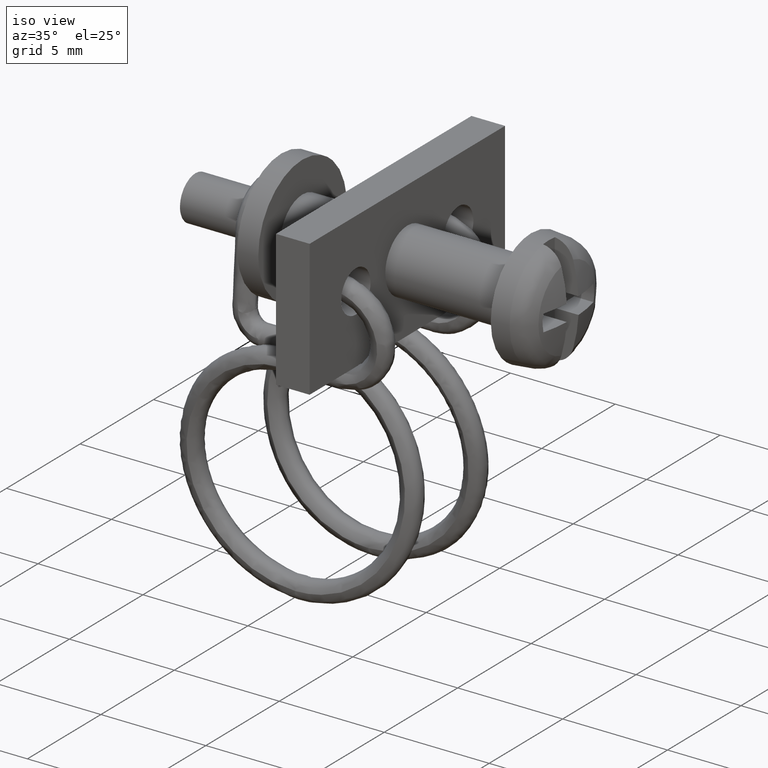
[diagram: clean part render]
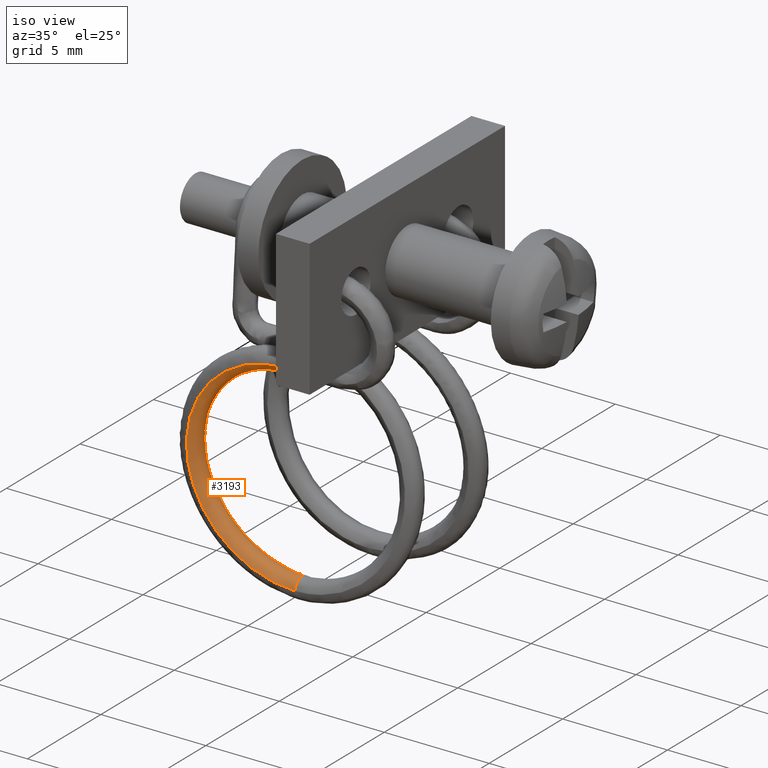
[diagram: same view with one face highlighted and labeled with its STEP entity id]
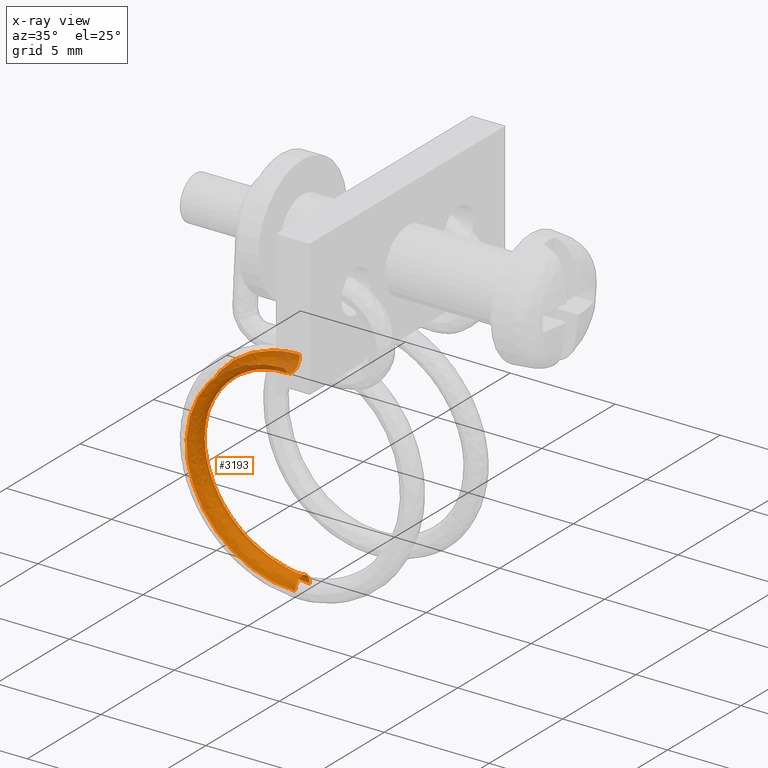
[diagram: x-ray of the same camera — body ghosted, the highlighted face saturated]
A machine part, iso view. The second image highlights one B-rep face of the part: STEP entity #3193.
The next image is the same camera in x-ray: the body ghosted, the highlighted face saturated — about 7% of this face is hidden behind the body in this view.
In plain terms, the highlighted face is a freeform B-spline surface patch.
Its self-contained STEP definition (entity closure, byte-faithful):
#2970=CARTESIAN_POINT('',(-9.150000000000301,-3.677413767197815,-4.101714622658045));
#2971=VERTEX_POINT('',#2970);
#2979=CARTESIAN_POINT('',(-9.150000000000301,-3.048092363696006,-4.479944228981552));
#2980=VERTEX_POINT('',#2979);
#2981=CARTESIAN_POINT('',(-9.150000000000301,-3.048092363696006,-4.479944228981552));
#2982=CARTESIAN_POINT('',(-9.150000000000301,-3.060574593802572,-4.483733990723244));
#2983=CARTESIAN_POINT('',(-9.150000000000301,-3.073258103844955,-4.486980507416745));
#2984=CARTESIAN_POINT('',(-9.150000000000301,-3.342455761924044,-4.542880272055068));
#2985=CARTESIAN_POINT('',(-9.150000000000301,-3.624147952179829,-4.358066569957548));
#2986=CARTESIAN_POINT('',(-9.150000000000301,-3.677413767197815,-4.101714622658045));
#2987=B_SPLINE_CURVE_WITH_KNOTS('',3,(#2981,#2982,#2983,#2984,#2985,#2986),.UNSPECIFIED.,.F.,.U.,(4,2,4),(0.737454105428892,0.750000000000000,1.0),.UNSPECIFIED.);
#2988=EDGE_CURVE('',#2980,#2971,#2987,.T.);
#3043=CARTESIAN_POINT('',(-9.150000000000301,-2.698324117503147,-3.898285377315160));
#3044=VERTEX_POINT('',#3043);
#3045=CARTESIAN_POINT('',(-9.150000000000301,-2.698324117503147,-3.898285377315160));
#3046=CARTESIAN_POINT('',(-9.150000000000301,-2.647730051534265,-4.141777013077766));
#3047=CARTESIAN_POINT('',(-9.150000000000301,-2.811859939641581,-4.408160994264810));
#3048=CARTESIAN_POINT('',(-9.150000000000301,-3.048092363696006,-4.479944228981552));
#3049=B_SPLINE_CURVE_WITH_KNOTS('',3,(#3045,#3046,#3047,#3048),.UNSPECIFIED.,.F.,.U.,(4,4),(0.500000000000000,0.737454105428892),.UNSPECIFIED.);
#3050=EDGE_CURVE('',#3044,#2980,#3049,.T.);
#3065=CARTESIAN_POINT('',(-8.989883455225995,-2.002198197491077,-14.049397424621869));
#3066=CARTESIAN_POINT('',(-8.998224117089373,-1.974638159336026,-13.782765626924380));
#3067=CARTESIAN_POINT('',(-9.007017536094148,-2.199847416419480,-13.519150346645169));
#3068=CARTESIAN_POINT('',(-9.009307259419236,-2.732702114506380,-13.483127008986150));
#3069=CARTESIAN_POINT('',(-9.002592987402439,-2.991343122416942,-13.714031868158960));
#3070=CARTESIAN_POINT('',(-8.994170756764294,-2.999920821415919,-13.981946956065091));
#3071=CARTESIAN_POINT('',(-9.043255636817330,-2.002198197491077,-14.049397424621869));
#3072=CARTESIAN_POINT('',(-9.048816078059584,-1.974638159336026,-13.782765626924380));
#3073=CARTESIAN_POINT('',(-9.054678357396096,-2.199847416419480,-13.519150346645169));
#3074=CARTESIAN_POINT('',(-9.056204839612821,-2.732702114506380,-13.483127008986150));
#3075=CARTESIAN_POINT('',(-9.051728658268290,-2.991343122416942,-13.714031868158960));
#3076=CARTESIAN_POINT('',(-9.046113837842864,-2.999920821415919,-13.981946956065091));
#3077=CARTESIAN_POINT('',(-9.096627818408665,-2.002198197491077,-14.049397424621869));
#3078=CARTESIAN_POINT('',(-9.099408039029790,-1.974638159336026,-13.782765626924380));
#3079=CARTESIAN_POINT('',(-9.102339178698049,-2.199847416419480,-13.519150346645169));
#3080=CARTESIAN_POINT('',(-9.103102419806412,-2.732702114506380,-13.483127008986150));
#3081=CARTESIAN_POINT('',(-9.100864329134147,-2.991343122416942,-13.714031868158960));
#3082=CARTESIAN_POINT('',(-9.098056918921431,-2.999920821415919,-13.981946956065091));
#3083=CARTESIAN_POINT('',(-10.484304539784009,-2.002198197491077,-14.049397424621869));
#3084=CARTESIAN_POINT('',(-10.414799024255821,-1.974638159336026,-13.782765626924380));
#3085=CARTESIAN_POINT('',(-10.341520532549341,-2.199847416419480,-13.519150346645169));
#3086=CARTESIAN_POINT('',(-10.322439504840270,-2.732702114506380,-13.483127008986150));
#3087=CARTESIAN_POINT('',(-10.378391771646930,-2.991343122416942,-13.714031868158960));
#3088=CARTESIAN_POINT('',(-10.448577026964820,-2.999920821415919,-13.981946956065091));
#3089=CARTESIAN_POINT('',(-11.803403806401530,-2.039883463252812,-13.501542108303560));
#3090=CARTESIAN_POINT('',(-11.665271787809910,-2.010359014498961,-13.263468230261781));
#3091=CARTESIAN_POINT('',(-11.519641532397101,-2.233497226649036,-13.029961082593410));
#3092=CARTESIAN_POINT('',(-11.481720788201651,-2.765812644179916,-13.001777618535090));
#3093=CARTESIAN_POINT('',(-11.592917712652230,-3.026035011859019,-13.209693218108420));
#3094=CARTESIAN_POINT('',(-11.732400614386741,-3.036596332710002,-13.448771099828040));
#3095=CARTESIAN_POINT('',(-13.685273770793479,-2.169312191795584,-11.619952163243010));
#3096=CARTESIAN_POINT('',(-13.449482355864481,-2.133071056057439,-11.479523149952870));
#3097=CARTESIAN_POINT('',(-13.200891447471770,-2.349127978503601,-11.348961334860260));
#3098=CARTESIAN_POINT('',(-13.136160720884231,-2.879599495021552,-11.347583863908129));
#3099=CARTESIAN_POINT('',(-13.325973918567280,-3.145228827304079,-11.476894888240730));
#3100=CARTESIAN_POINT('',(-13.564071291600129,-3.162572522003809,-11.617372972361659));
#3101=CARTESIAN_POINT('',(-14.233157368064960,-2.260260119769721,-10.297782744371020));
#3102=CARTESIAN_POINT('',(-13.969060188128640,-2.219312469724069,-10.225775402968740));
#3103=CARTESIAN_POINT('',(-13.690626989515980,-2.430407393586147,-10.167349401530929));
#3104=CARTESIAN_POINT('',(-13.618125612175790,-2.959586852499671,-10.184755415706791));
#3105=CARTESIAN_POINT('',(-13.830725083781550,-3.229004950928653,-10.258986672458040));
#3106=CARTESIAN_POINT('',(-14.097405042367580,-3.251101188010532,-10.330373944515550));
#3107=CARTESIAN_POINT('',(-14.233727374218731,-2.443307865086526,-7.636698138704198));
#3108=CARTESIAN_POINT('',(-13.969600716614799,-2.392893964917623,-7.702307856903835));
#3109=CARTESIAN_POINT('',(-13.691136440190069,-2.594008781072836,-7.788969198306273));
#3110=CARTESIAN_POINT('',(-13.618626970481630,-3.120589514121414,-7.844154587367258));
#3111=CARTESIAN_POINT('',(-13.831250171749980,-3.397627988410319,-7.807603464077143));
#3112=CARTESIAN_POINT('',(-14.097959896285090,-3.429283052252238,-7.740027829509892));
#3113=CARTESIAN_POINT('',(-13.686382795813939,-2.534287684914444,-6.314065087139075));
#3114=CARTESIAN_POINT('',(-13.450533937506130,-2.479165634884827,-6.448120254324744));
#3115=CARTESIAN_POINT('',(-13.201882467527501,-2.675316728120493,-6.606942477174985));
#3116=CARTESIAN_POINT('',(-13.137135971273960,-3.200604954563755,-6.680917878780745));
#3117=CARTESIAN_POINT('',(-13.326995411148250,-3.481433511627050,-6.589267847233650));
#3118=CARTESIAN_POINT('',(-13.565150789336220,-3.517842769399148,-6.452577390973056));
#3119=CARTESIAN_POINT('',(-11.804604393922030,-2.663793309941977,-4.431357247643375));
#3120=CARTESIAN_POINT('',(-11.666409961801801,-2.601950597434906,-4.663115073934582));
#3121=CARTESIAN_POINT('',(-11.520713904860679,-2.791016209669957,-4.924943560972756));
#3122=CARTESIAN_POINT('',(-11.482776026568740,-3.314459443726615,-5.025740821701358));
#3123=CARTESIAN_POINT('',(-11.594023194202141,-3.600698165684193,-4.855439690186509));
#3124=CARTESIAN_POINT('',(-11.733569119847900,-3.643893811677787,-4.620091076764626));
#3125=CARTESIAN_POINT('',(-10.485037493801560,-2.701519576616844,-3.882905873060651));
#3126=CARTESIAN_POINT('',(-10.415493767980200,-2.637710318254220,-4.143252660622388));
#3127=CARTESIAN_POINT('',(-10.342174991805670,-2.824702634391438,-4.435222006921627));
#3128=CARTESIAN_POINT('',(-10.323083474400880,-3.347606001709875,-4.543867662961900));
#3129=CARTESIAN_POINT('',(-10.379066500674099,-3.635427802327638,-4.350552283201884));
#3130=CARTESIAN_POINT('',(-10.449290339968570,-3.680609226311729,-4.086335118402490));
#3131=CARTESIAN_POINT('',(-9.096598500248250,-2.701519576616844,-3.882905873060651));
#3132=CARTESIAN_POINT('',(-9.099380249281106,-2.637710318254220,-4.143252660622388));
#3133=CARTESIAN_POINT('',(-9.102313000328087,-2.824702634391438,-4.435222006921627));
#3134=CARTESIAN_POINT('',(-9.103076661024279,-3.347606001709875,-4.543867662961900));
#3135=CARTESIAN_POINT('',(-9.100837339973349,-3.635427802327638,-4.350552283201884));
#3136=CARTESIAN_POINT('',(-9.098028386401570,-3.680609226311729,-4.086335118402490));
#3137=CARTESIAN_POINT('',(-9.043197000496200,-2.701519576616844,-3.882905873060651));
#3138=CARTESIAN_POINT('',(-9.048760498561910,-2.637710318254220,-4.143252660622388));
#3139=CARTESIAN_POINT('',(-9.054626000655873,-2.824702634391438,-4.435222006921627));
#3140=CARTESIAN_POINT('',(-9.056153322048255,-3.347606001709875,-4.543867662961900));
#3141=CARTESIAN_POINT('',(-9.051674679946398,-3.635427802327638,-4.350552283201884));
#3142=CARTESIAN_POINT('',(-9.046056772802839,-3.680609226311729,-4.086335118402490));
#3143=CARTESIAN_POINT('',(-8.989795500744149,-2.701519576616844,-3.882905873060651));
#3144=CARTESIAN_POINT('',(-8.998140747842715,-2.637710318254220,-4.143252660622388));
#3145=CARTESIAN_POINT('',(-9.006939000983657,-2.824702634391438,-4.435222006921627));
#3146=CARTESIAN_POINT('',(-9.009229983072233,-3.347606001709875,-4.543867662961900));
#3147=CARTESIAN_POINT('',(-9.002512019919447,-3.635427802327638,-4.350552283201884));
#3148=CARTESIAN_POINT('',(-8.994085159204110,-3.680609226311729,-4.086335118402490));
#3149=B_SPLINE_SURFACE_WITH_KNOTS('',3,3,((#3065,#3071,#3077,#3083,#3089,#3095,#3101,#3107,#3113,#3119,#3125,#3131,#3137,#3143),(#3066,#3072,#3078,#3084,#3090,#3096,#3102,#3108,#3114,#3120,#3126,#3132,#3138,#3144),(#3067,#3073,#3079,#3085,#3091,#3097,#3103,#3109,#3115,#3121,#3127,#3133,#3139,#3145),(#3068,#3074,#3080,#3086,#3092,#3098,#3104,#3110,#3116,#3122,#3128,#3134,#3140,#3146),(#3069,#3075,#3081,#3087,#3093,#3099,#3105,#3111,#3117,#3123,#3129,#3135,#3141,#3147),(#3070,#3076,#3082,#3088,#3094,#3100,#3106,#3112,#3118,#3124,#3130,#3136,#3142,#3148)),.UNSPECIFIED.,.F.,.F.,.U.,(4,2,4),(4,2,2,2,2,2,4),(0.0,0.804554379183072,1.609108758367217),(0.0,0.160204499256083,4.165316980660029,8.170429462063858,12.175541943467801,16.180654424871740,16.340858924127900),.UNSPECIFIED.);
#3150=CARTESIAN_POINT('',(-9.150000000000077,-2.001138688024330,-14.033725234292559));
#3151=VERTEX_POINT('',#3150);
#3152=CARTESIAN_POINT('',(-9.150000000000077,-2.001138688024330,-14.033725234292559));
#3153=CARTESIAN_POINT('',(-10.480208995675760,-2.001138688024330,-14.033725234292559));
#3154=CARTESIAN_POINT('',(-11.795264513129471,-2.038708202823679,-13.487552665288661));
#3155=CARTESIAN_POINT('',(-13.671379993690129,-2.167741157192262,-11.611716347800010));
#3156=CARTESIAN_POINT('',(-14.217595701611730,-2.258411758440030,-10.293578608616350));
#3157=CARTESIAN_POINT('',(-14.218163970822911,-2.440901714279066,-7.640602952769910));
#3158=CARTESIAN_POINT('',(-13.672485633915979,-2.531604111007253,-6.322002981935235));
#3159=CARTESIAN_POINT('',(-11.796461422994151,-2.660713727608569,-4.445052175486863));
#3160=CARTESIAN_POINT('',(-10.480939698189310,-2.698324117503147,-3.898285377315160));
#3161=CARTESIAN_POINT('',(-9.150000000000301,-2.698324117503147,-3.898285377315160));
#3162=B_SPLINE_CURVE_WITH_KNOTS('',3,(#3152,#3153,#3154,#3155,#3156,#3157,#3158,#3159,#3160,#3161),.UNSPECIFIED.,.F.,.U.,(4,2,2,2,4),(0.741097573084041,0.779027978262199,0.816958383440356,0.854888788618514,0.892819193796672),.UNSPECIFIED.);
#3163=EDGE_CURVE('',#3151,#3044,#3162,.T.);
#3164=ORIENTED_EDGE('',*,*,#3163,.T.);
#3165=ORIENTED_EDGE('',*,*,#3050,.T.);
#3166=ORIENTED_EDGE('',*,*,#2988,.T.);
#3167=CARTESIAN_POINT('',(-9.150000000000151,-2.998861311964939,-13.966274765734710));
#3168=VERTEX_POINT('',#3167);
#3169=CARTESIAN_POINT('',(-9.150000000000151,-2.998861311964939,-13.966274765734710));
#3170=CARTESIAN_POINT('',(-10.444481482856370,-2.998861311964939,-13.966274765734710));
#3171=CARTESIAN_POINT('',(-11.724261321114200,-3.035421072295765,-13.434781656812190));
#3172=CARTESIAN_POINT('',(-13.550177514495889,-3.161001487412442,-11.609137156918100));
#3173=CARTESIAN_POINT('',(-14.081843375913341,-3.249252826690709,-10.326169808760600));
#3174=CARTESIAN_POINT('',(-14.082396492888240,-3.426876901450462,-7.743932643575870));
#3175=CARTESIAN_POINT('',(-13.551253627437321,-3.515159195495570,-6.460515285769755));
#3176=CARTESIAN_POINT('',(-11.725426148919469,-3.640814229345016,-4.633786004609045));
#3177=CARTESIAN_POINT('',(-10.445192544356040,-3.677413767197815,-4.101714622658045));
#3178=CARTESIAN_POINT('',(-9.150000000000301,-3.677413767197815,-4.101714622658045));
#3179=B_SPLINE_CURVE_WITH_KNOTS('',3,(#3169,#3170,#3171,#3172,#3173,#3174,#3175,#3176,#3177,#3178),.UNSPECIFIED.,.F.,.U.,(4,2,2,2,4),(0.741097573084041,0.779027978262199,0.816958383440356,0.854888788618514,0.892819193796672),.UNSPECIFIED.);
#3180=EDGE_CURVE('',#3168,#2971,#3179,.T.);
#3181=ORIENTED_EDGE('',*,*,#3180,.F.);
#3182=CARTESIAN_POINT('',(-9.150000000000077,-2.001138688024330,-14.033725234292559));
#3183=CARTESIAN_POINT('',(-9.150000000000077,-1.983480196649120,-13.772522062155700));
#3184=CARTESIAN_POINT('',(-9.150000000000095,-2.205071593574694,-13.518797179426461));
#3185=CARTESIAN_POINT('',(-9.150000000000134,-2.727477937856723,-13.483480196676039));
#3186=CARTESIAN_POINT('',(-9.150000000000151,-2.981202820589726,-13.705071593597840));
#3187=CARTESIAN_POINT('',(-9.150000000000151,-2.998861311964939,-13.966274765734710));
#3188=B_SPLINE_CURVE_WITH_KNOTS('',3,(#3182,#3183,#3184,#3185,#3186,#3187),.UNSPECIFIED.,.F.,.U.,(4,2,4),(0.500000000000000,0.750000000000000,1.0),.UNSPECIFIED.);
#3189=EDGE_CURVE('',#3151,#3168,#3188,.T.);
#3190=ORIENTED_EDGE('',*,*,#3189,.F.);
#3191=EDGE_LOOP('',(#3164,#3165,#3166,#3181,#3190));
#3192=FACE_OUTER_BOUND('',#3191,.T.);
#3193=ADVANCED_FACE('',(#3192),#3149,.F.);